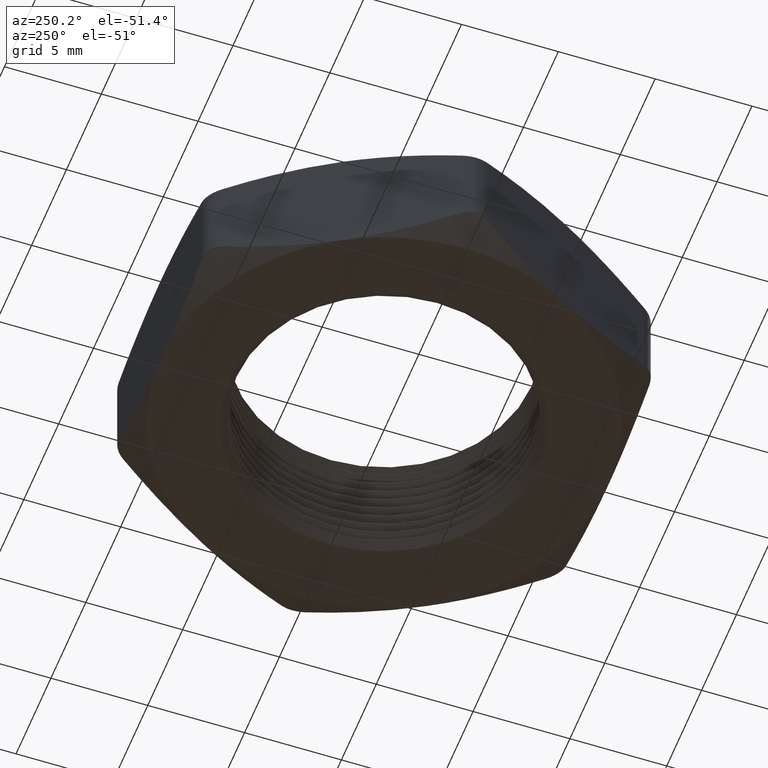
[diagram: clean part render]
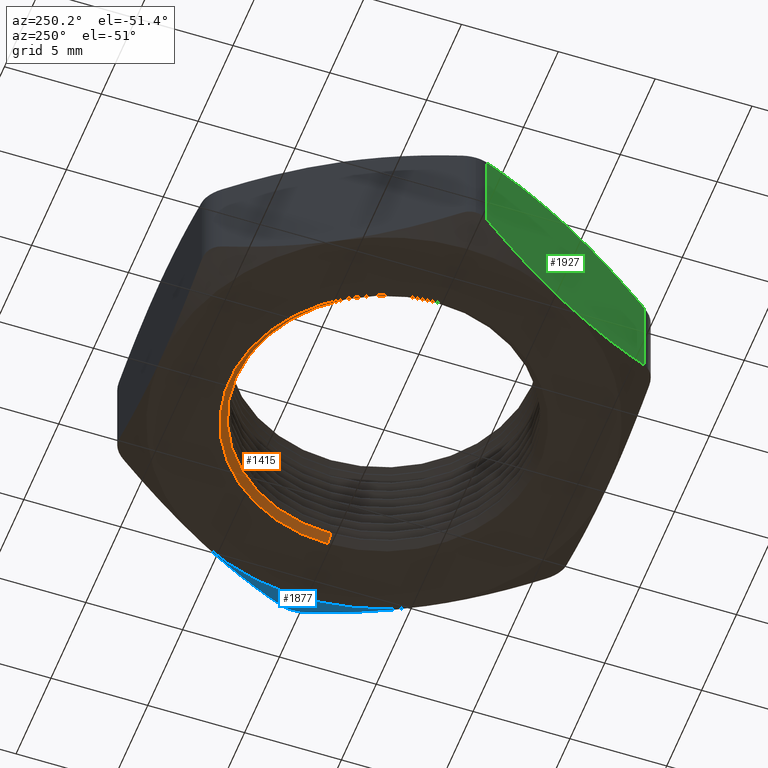
[diagram: same view with three faces highlighted in distinct colors, each labeled with its STEP entity id]
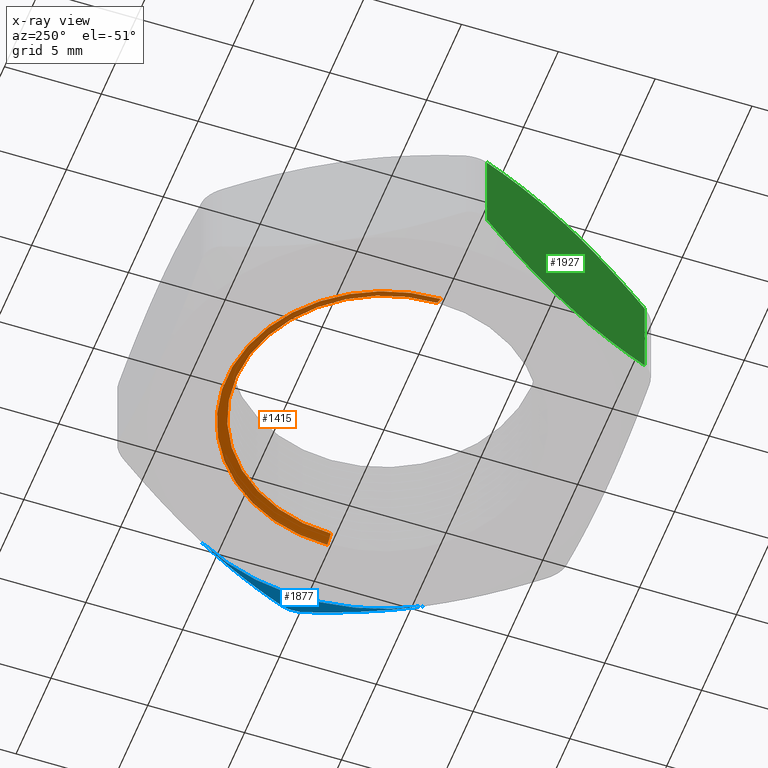
[diagram: x-ray of the same camera — body ghosted, the three highlighted faces saturated]
A machine part, auxiliary view with three faces highlighted in distinct colors.
The next image is the same camera in x-ray (body ghosted, the three faces saturated) — at least one of them is partly hidden behind the body in this view.
Their STEP definitions:

[orange] entity #1415 — the highlighted conical surface has half-angle 60 deg.
#1258 = VERTEX_POINT ( 'NONE', #2067 ) ;
#1259 = VERTEX_POINT ( 'NONE', #2066 ) ;
#1356 = EDGE_CURVE ( 'NONE', #1259, #1357, #2277, .T. ) ;
#1357 = VERTEX_POINT ( 'NONE', #2273 ) ;
#1360 = VERTEX_POINT ( 'NONE', #2361 ) ;
#1362 = EDGE_CURVE ( 'NONE', #1258, #1360, #2360, .T. ) ;
#1405 = ORIENTED_EDGE ( 'NONE', *, *, #1356, .F. ) ;
#1406 = ORIENTED_EDGE ( 'NONE', *, *, #1435, .T. ) ;
#1407 = ORIENTED_EDGE ( 'NONE', *, *, #1362, .T. ) ;
#1408 = ORIENTED_EDGE ( 'NONE', *, *, #1414, .F. ) ;
#1414 = EDGE_CURVE ( 'NONE', #1357, #1360, #2423, .T. ) ;
#1415 = ADVANCED_FACE ( 'NONE', ( #2424 ), #2416, .F. ) ;
#1416 = EDGE_LOOP ( 'NONE', ( #1405, #1406, #1407, #1408 ) ) ;
#1435 = EDGE_CURVE ( 'NONE', #1259, #1258, #2508, .T. ) ;
#2066 = CARTESIAN_POINT ( 'NONE',  ( 0.2999999999999999900, 3.673940397442058300E-017, 0.01499999999999997700 ) ) ;
#2067 = CARTESIAN_POINT ( 'NONE',  ( -0.2999999999999999900, 0.0000000000000000000, 0.01499999999999997700 ) ) ;
#2273 = CARTESIAN_POINT ( 'NONE',  ( 0.3200000000000000100, 0.0000000000000000000, 0.003452994616207730700 ) ) ;
#2274 = DIRECTION ( 'NONE',  ( 0.8660254037844440400, 1.060575238724913400E-016, -0.4999999999999907300 ) ) ;
#2275 = VECTOR ( 'NONE', #2274, 39.37007874015748100 ) ;
#2276 = CARTESIAN_POINT ( 'NONE',  ( 0.3200000000000000100, 3.918869757271530800E-017, 0.003452994616207730700 ) ) ;
#2277 = LINE ( 'NONE', #2276, #2275 ) ;
#2357 = DIRECTION ( 'NONE',  ( -0.8660254037844440400, 0.0000000000000000000, -0.4999999999999907300 ) ) ;
#2358 = VECTOR ( 'NONE', #2357, 39.37007874015748100 ) ;
#2359 = CARTESIAN_POINT ( 'NONE',  ( -0.3200000000000000100, 0.0000000000000000000, 0.003452994616207730700 ) ) ;
#2360 = LINE ( 'NONE', #2359, #2358 ) ;
#2361 = CARTESIAN_POINT ( 'NONE',  ( -0.3200000000000000100, 3.918869757271529600E-017, 0.003452994616207730700 ) ) ;
#2413 = DIRECTION ( 'NONE',  ( -1.000000000000000000, 0.0000000000000000000, 0.0000000000000000000 ) ) ;
#2414 = DIRECTION ( 'NONE',  ( 0.0000000000000000000, 0.0000000000000000000, -1.000000000000000000 ) ) ;
#2415 = AXIS2_PLACEMENT_3D ( 'NONE', #2418, #2414, #2413 ) ;
#2416 = CONICAL_SURFACE ( 'NONE', #2415, 0.3200000000000000100, 1.047197551196608500 ) ;
#2418 = CARTESIAN_POINT ( 'NONE',  ( 0.0000000000000000000, 0.0000000000000000000, 0.003452994616207730700 ) ) ;
#2419 = DIRECTION ( 'NONE',  ( 1.000000000000000000, 0.0000000000000000000, 0.0000000000000000000 ) ) ;
#2420 = DIRECTION ( 'NONE',  ( 0.0000000000000000000, 0.0000000000000000000, 1.000000000000000000 ) ) ;
#2421 = CARTESIAN_POINT ( 'NONE',  ( 0.0000000000000000000, 0.0000000000000000000, 0.003452994616207730700 ) ) ;
#2422 = AXIS2_PLACEMENT_3D ( 'NONE', #2421, #2420, #2419 ) ;
#2423 = CIRCLE ( 'NONE', #2422, 0.3200000000000000100 ) ;
#2424 = FACE_OUTER_BOUND ( 'NONE', #1416, .T. ) ;
#2494 = DIRECTION ( 'NONE',  ( 1.000000000000000000, 0.0000000000000000000, 0.0000000000000000000 ) ) ;
#2495 = DIRECTION ( 'NONE',  ( 0.0000000000000000000, 0.0000000000000000000, 1.000000000000000000 ) ) ;
#2496 = CARTESIAN_POINT ( 'NONE',  ( 0.0000000000000000000, 0.0000000000000000000, 0.01499999999999997700 ) ) ;
#2497 = AXIS2_PLACEMENT_3D ( 'NONE', #2496, #2495, #2494 ) ;
#2508 = CIRCLE ( 'NONE', #2497, 0.2999999999999999900 ) ;

[blue] entity #1877 — the highlighted conical surface has half-angle 60 deg.
#573 = CARTESIAN_POINT ( 'NONE',  ( 0.5109549882328010600, 0.02500000000003076500, 0.03265852378575818900 ) ) ;
#717 = CARTESIAN_POINT ( 'NONE',  ( 0.5148001565488535800, -0.01720949734972865300, 0.03468163387755517100 ) ) ;
#718 = CARTESIAN_POINT ( 'NONE',  ( 0.5170650165982407800, -0.008802104174805236100, 0.03586651350329239000 ) ) ;
#721 = DIRECTION ( 'NONE',  ( -1.000000000000000000, 0.0000000000000000000, 0.0000000000000000000 ) ) ;
#722 = AXIS2_PLACEMENT_3D ( 'NONE', #741, #739, #721 ) ;
#729 = CONICAL_SURFACE ( 'NONE', #722, 0.4550000000000000200, 1.047197551196600100 ) ;
#730 = FACE_OUTER_BOUND ( 'NONE', #1878, .T. ) ;
#739 = DIRECTION ( 'NONE',  ( 0.0000000000000000000, 0.0000000000000000000, 1.000000000000000000 ) ) ;
#741 = CARTESIAN_POINT ( 'NONE',  ( 0.0000000000000000000, 0.0000000000000000000, 0.0000000000000000000 ) ) ;
#804 = CARTESIAN_POINT ( 'NONE',  ( 0.3940415587219195900, -0.2275000000000000400, 0.0000000000000000000 ) ) ;
#805 = CARTESIAN_POINT ( 'NONE',  ( 0.4139180713141775700, -0.1930728703129263900, -3.185377445737431100E-016 ) ) ;
#806 = CARTESIAN_POINT ( 'NONE',  ( 0.4335757174413649200, -0.1590248284634281400, 0.003047286557915344300 ) ) ;
#807 = CARTESIAN_POINT ( 'NONE',  ( 0.4725179159795663300, -0.09157496203682961900, 0.01433645842496505800 ) ) ;
#808 = CARTESIAN_POINT ( 'NONE',  ( 0.4918044299211132800, -0.05816973998918438500, 0.02255103326592751100 ) ) ;
#809 = CARTESIAN_POINT ( 'NONE',  ( 0.5109549882328113800, -0.02500000000001276500, 0.03265852378576349800 ) ) ;
#810 = CARTESIAN_POINT ( 'NONE',  ( 0.5109549882328113800, -0.02500000000001276500, 0.03265852378576349800 ) ) ;
#811 = B_SPLINE_CURVE_WITH_KNOTS ( 'NONE', 3,
 ( #809, #808, #807, #806, #805, #804 ),
 .UNSPECIFIED., .F., .F.,
 ( 4, 2, 4 ),
 ( 0.0007548448879267501000, 0.003753248236284075000, 0.006751651584641402100 ),
 .UNSPECIFIED. ) ;
#940 = CARTESIAN_POINT ( 'NONE',  ( 0.5176575038464766900, -0.004354758607913779500, 0.03617511559322951500 ) ) ;
#941 = CARTESIAN_POINT ( 'NONE',  ( 0.5176498948249436100, 0.004441263829342938100, 0.03617114684769665000 ) ) ;
#942 = CARTESIAN_POINT ( 'NONE',  ( 0.5170596318599167700, 0.008845750843170486000, 0.03586371570928746600 ) ) ;
#943 = CARTESIAN_POINT ( 'NONE',  ( 0.5147686078461921600, 0.01730256590492920000, 0.03466510933364870500 ) ) ;
#944 = CARTESIAN_POINT ( 'NONE',  ( 0.5131063450007207200, 0.02127374077278671200, 0.03379399032299054700 ) ) ;
#945 = CARTESIAN_POINT ( 'NONE',  ( 0.5109549882328010600, 0.02500000000003076500, 0.03265852378575818900 ) ) ;
#946 = B_SPLINE_CURVE_WITH_KNOTS ( 'NONE', 3,
 ( #945, #944, #943, #942, #941, #940, #718, #717, #2535, #2536 ),
 .UNSPECIFIED., .F., .F.,
 ( 4, 2, 2, 2, 4 ),
 ( 1.450008029362912500E-016, 0.0003345748604479897900, 0.0006691497208958345200, 0.001003724581343679500, 0.001338299441791524200 ),
 .UNSPECIFIED. ) ;
#1328 = EDGE_CURVE ( 'NONE', #1440, #1767, #2266, .T. ) ;
#1440 = VERTEX_POINT ( 'NONE', #2486 ) ;
#1443 = EDGE_CURVE ( 'NONE', #1444, #1440, #2459, .T. ) ;
#1444 = VERTEX_POINT ( 'NONE', #2514 ) ;
#1767 = VERTEX_POINT ( 'NONE', #573 ) ;
#1877 = ADVANCED_FACE ( 'NONE', ( #730 ), #729, .T. ) ;
#1878 = EDGE_LOOP ( 'NONE', ( #1984, #1985, #1942, #1943 ) ) ;
#1921 = EDGE_CURVE ( 'NONE', #1922, #1444, #811, .T. ) ;
#1922 = VERTEX_POINT ( 'NONE', #810 ) ;
#1942 = ORIENTED_EDGE ( 'NONE', *, *, #1921, .T. ) ;
#1943 = ORIENTED_EDGE ( 'NONE', *, *, #1443, .T. ) ;
#1984 = ORIENTED_EDGE ( 'NONE', *, *, #1328, .T. ) ;
#1985 = ORIENTED_EDGE ( 'NONE', *, *, #1986, .T. ) ;
#1986 = EDGE_CURVE ( 'NONE', #1767, #1922, #946, .T. ) ;
#2249 = CARTESIAN_POINT ( 'NONE',  ( 0.4335849737503632000, 0.1590087960659530600, 0.003700199747440789300 ) ) ;
#2250 = CARTESIAN_POINT ( 'NONE',  ( 0.4138866949049800900, 0.1931272158478156400, 0.0007563157387480982000 ) ) ;
#2251 = CARTESIAN_POINT ( 'NONE',  ( 0.4039398436940401800, 0.2103556675204913400, -2.509084998087147800E-016 ) ) ;
#2252 = CARTESIAN_POINT ( 'NONE',  ( 0.3940415587219196500, 0.2274999999999999500, 0.0000000000000000000 ) ) ;
#2266 = B_SPLINE_CURVE_WITH_KNOTS ( 'NONE', 3,
 ( #2252, #2251, #2250, #2249, #2369, #2368, #2367, #2366 ),
 .UNSPECIFIED., .F., .F.,
 ( 4, 2, 2, 4 ),
 ( 0.006751651584641401300, 0.008244823521400665800, 0.009737995458159929400, 0.01272433933167845700 ),
 .UNSPECIFIED. ) ;
#2366 = CARTESIAN_POINT ( 'NONE',  ( 0.5109549882328010600, 0.02500000000003076500, 0.03265852378575818900 ) ) ;
#2367 = CARTESIAN_POINT ( 'NONE',  ( 0.4918480997078027400, 0.05809410169988263300, 0.02257408178220570600 ) ) ;
#2368 = CARTESIAN_POINT ( 'NONE',  ( 0.4725861320703315700, 0.09145680830173003000, 0.01436209415985254300 ) ) ;
#2369 = CARTESIAN_POINT ( 'NONE',  ( 0.4433750602790623700, 0.1420518687877505300, 0.005885157504298295200 ) ) ;
#2459 = CIRCLE ( 'NONE', #2518, 0.4549999999999999000 ) ;
#2486 = CARTESIAN_POINT ( 'NONE',  ( 0.3940415587219196500, 0.2274999999999999500, 0.0000000000000000000 ) ) ;
#2514 = CARTESIAN_POINT ( 'NONE',  ( 0.3940415587219195900, -0.2275000000000000400, 0.0000000000000000000 ) ) ;
#2515 = DIRECTION ( 'NONE',  ( 1.000000000000000000, 0.0000000000000000000, 0.0000000000000000000 ) ) ;
#2516 = DIRECTION ( 'NONE',  ( 0.0000000000000000000, 0.0000000000000000000, 1.000000000000000000 ) ) ;
#2517 = CARTESIAN_POINT ( 'NONE',  ( 0.0000000000000000000, 0.0000000000000000000, 0.0000000000000000000 ) ) ;
#2518 = AXIS2_PLACEMENT_3D ( 'NONE', #2517, #2516, #2515 ) ;
#2535 = CARTESIAN_POINT ( 'NONE',  ( 0.5131070269716965200, -0.02127255956441122900, 0.03379435026129343200 ) ) ;
#2536 = CARTESIAN_POINT ( 'NONE',  ( 0.5109549882328113800, -0.02500000000001276500, 0.03265852378576349800 ) ) ;

[green] entity #1927 — the highlighted planar face has unit normal (0.866, 0.5, 0).
#217 = CARTESIAN_POINT ( 'NONE',  ( -0.5109549882328114900, -0.02500000000001279700, 0.2073414762142364300 ) ) ;
#425 = CARTESIAN_POINT ( 'NONE',  ( -0.5109549882328189300, -0.02499999999999987300, 0.03265852378576766100 ) ) ;
#471 = DIRECTION ( 'NONE',  ( 0.0000000000000000000, 0.0000000000000000000, -1.000000000000000000 ) ) ;
#472 = VECTOR ( 'NONE', #471, 39.37007874015748100 ) ;
#473 = CARTESIAN_POINT ( 'NONE',  ( -0.5109549882328189300, -0.02499999999999995600, 0.2399999999999999900 ) ) ;
#474 = LINE ( 'NONE', #473, #472 ) ;
#661 = CARTESIAN_POINT ( 'NONE',  ( -0.5109549882328189300, -0.02499999999999987300, 0.03265852378576766100 ) ) ;
#662 = CARTESIAN_POINT ( 'NONE',  ( -0.4918480997078180100, -0.05809410169985667500, 0.02257408178221246400 ) ) ;
#663 = CARTESIAN_POINT ( 'NONE',  ( -0.4725861320703438900, -0.09145680830170908900, 0.01436209415985689900 ) ) ;
#664 = CARTESIAN_POINT ( 'NONE',  ( -0.4433750602790700900, -0.1420518687877372300, 0.005885157504300142700 ) ) ;
#665 = CARTESIAN_POINT ( 'NONE',  ( -0.4335849737503692500, -0.1590087960659423100, 0.003700199747441996300 ) ) ;
#666 = CARTESIAN_POINT ( 'NONE',  ( -0.4138866949049833700, -0.1931272158478103700, 0.0007563157387484078500 ) ) ;
#667 = CARTESIAN_POINT ( 'NONE',  ( -0.4039398436940421200, -0.2103556675204886200, -2.006200870347191200E-016 ) ) ;
#668 = CARTESIAN_POINT ( 'NONE',  ( -0.3940415587219196500, -0.2274999999999998700, 0.0000000000000000000 ) ) ;
#671 = B_SPLINE_CURVE_WITH_KNOTS ( 'NONE', 3,
 ( #668, #667, #666, #665, #664, #663, #662, #661 ),
 .UNSPECIFIED., .F., .F.,
 ( 4, 2, 2, 4 ),
 ( 0.006751651584641398700, 0.008244823521400893000, 0.009737995458160389100, 0.01272433933167938100 ),
 .UNSPECIFIED. ) ;
#743 = CARTESIAN_POINT ( 'NONE',  ( -0.3940415587219198700, -0.2275000000000000100, 0.2399999999999999900 ) ) ;
#744 = CARTESIAN_POINT ( 'NONE',  ( -0.4139180713141779000, -0.1930728703129263300, 0.2400000000000002100 ) ) ;
#745 = CARTESIAN_POINT ( 'NONE',  ( -0.4335757174413654700, -0.1590248284634280300, 0.2369527134420846000 ) ) ;
#746 = CARTESIAN_POINT ( 'NONE',  ( -0.4725179159795663300, -0.09157496203682959100, 0.2256635415750348800 ) ) ;
#747 = CARTESIAN_POINT ( 'NONE',  ( -0.4918044299211136200, -0.05816973998918444100, 0.2174489667340724100 ) ) ;
#748 = CARTESIAN_POINT ( 'NONE',  ( -0.5109549882328114900, -0.02500000000001279700, 0.2073414762142364300 ) ) ;
#749 = B_SPLINE_CURVE_WITH_KNOTS ( 'NONE', 3,
 ( #748, #747, #746, #745, #744, #743 ),
 .UNSPECIFIED., .F., .F.,
 ( 4, 2, 4 ),
 ( 0.0007548448879267511800, 0.003753248236284075500, 0.006751651584641398700 ),
 .UNSPECIFIED. ) ;
#797 = PLANE ( 'NONE',  #849 ) ;
#798 = FACE_OUTER_BOUND ( 'NONE', #1961, .T. ) ;
#841 = DIRECTION ( 'NONE',  ( -0.4999999999999997200, 0.8660254037844388200, 0.0000000000000000000 ) ) ;
#842 = DIRECTION ( 'NONE',  ( 0.8660254037844388200, 0.4999999999999997200, 0.0000000000000000000 ) ) ;
#843 = CARTESIAN_POINT ( 'NONE',  ( -0.5253887449625596100, 7.036056802819231600E-017, 0.2399999999999999900 ) ) ;
#849 = AXIS2_PLACEMENT_3D ( 'NONE', #843, #842, #841 ) ;
#850 = CARTESIAN_POINT ( 'NONE',  ( -0.2962786875227262900, -0.3968302600108153400, 0.02255103326592758400 ) ) ;
#851 = CARTESIAN_POINT ( 'NONE',  ( -0.2771281292110280800, -0.4299999999999870600, 0.03265852378576356000 ) ) ;
#852 = CARTESIAN_POINT ( 'NONE',  ( -0.2771281292110280800, -0.4299999999999870600, 0.03265852378576356000 ) ) ;
#853 = B_SPLINE_CURVE_WITH_KNOTS ( 'NONE', 3,
 ( #851, #850, #909, #908, #907, #906 ),
 .UNSPECIFIED., .F., .F.,
 ( 4, 2, 4 ),
 ( 0.0007548448879267518300, 0.003753248236284073700, 0.006751651584641398700 ),
 .UNSPECIFIED. ) ;
#890 = CARTESIAN_POINT ( 'NONE',  ( -0.2771281292110206500, -0.4299999999999999400, 0.2073414762142324100 ) ) ;
#891 = CARTESIAN_POINT ( 'NONE',  ( -0.2962350177360218400, -0.3969058983001431100, 0.2174259182177875600 ) ) ;
#892 = CARTESIAN_POINT ( 'NONE',  ( -0.3154969853734959100, -0.3635431916982906900, 0.2256379058401431500 ) ) ;
#893 = CARTESIAN_POINT ( 'NONE',  ( -0.3447080571647696500, -0.3129481312122625000, 0.2341148424956999200 ) ) ;
#894 = CARTESIAN_POINT ( 'NONE',  ( -0.3544981436934701600, -0.2959912039340574200, 0.2362998002525579800 ) ) ;
#895 = CARTESIAN_POINT ( 'NONE',  ( -0.3741964225388564300, -0.2618727841521895600, 0.2392436842612516200 ) ) ;
#896 = CARTESIAN_POINT ( 'NONE',  ( -0.3841432737497974500, -0.2446443324795112300, 0.2400000000000001000 ) ) ;
#897 = CARTESIAN_POINT ( 'NONE',  ( -0.3940415587219198700, -0.2275000000000000100, 0.2399999999999999900 ) ) ;
#899 = CARTESIAN_POINT ( 'NONE',  ( -0.3940415587219198700, -0.2275000000000000100, 0.2399999999999999900 ) ) ;
#900 = B_SPLINE_CURVE_WITH_KNOTS ( 'NONE', 3,
 ( #897, #896, #895, #894, #893, #892, #891, #890 ),
 .UNSPECIFIED., .F., .F.,
 ( 4, 2, 2, 4 ),
 ( 0.006751651584641398700, 0.008244823521400893000, 0.009737995458160387400, 0.01272433933167937600 ),
 .UNSPECIFIED. ) ;
#901 = CARTESIAN_POINT ( 'NONE',  ( -0.2771281292110206500, -0.4299999999999999400, 0.2073414762142324100 ) ) ;
#902 = DIRECTION ( 'NONE',  ( 0.0000000000000000000, 0.0000000000000000000, 1.000000000000000000 ) ) ;
#903 = VECTOR ( 'NONE', #902, 39.37007874015748100 ) ;
#904 = CARTESIAN_POINT ( 'NONE',  ( -0.2771281292110207000, -0.4299999999999999400, 0.2399999999999999900 ) ) ;
#905 = LINE ( 'NONE', #904, #903 ) ;
#906 = CARTESIAN_POINT ( 'NONE',  ( -0.3940415587219196500, -0.2274999999999998700, 0.0000000000000000000 ) ) ;
#907 = CARTESIAN_POINT ( 'NONE',  ( -0.3741650461296617300, -0.2619271296870736600, -1.996863499275098800E-016 ) ) ;
#908 = CARTESIAN_POINT ( 'NONE',  ( -0.3545074000024741000, -0.2959751715365717100, 0.003047286557915398100 ) ) ;
#909 = CARTESIAN_POINT ( 'NONE',  ( -0.3155652014642733600, -0.3634250379631702200, 0.01433645842496508000 ) ) ;
#1464 = VERTEX_POINT ( 'NONE', #2407 ) ;
#1581 = VERTEX_POINT ( 'NONE', #217 ) ;
#1701 = VERTEX_POINT ( 'NONE', #425 ) ;
#1703 = EDGE_CURVE ( 'NONE', #1581, #1701, #474, .T. ) ;
#1806 = EDGE_CURVE ( 'NONE', #1464, #1701, #671, .T. ) ;
#1901 = ORIENTED_EDGE ( 'NONE', *, *, #1902, .F. ) ;
#1902 = EDGE_CURVE ( 'NONE', #1581, #1955, #749, .T. ) ;
#1903 = ORIENTED_EDGE ( 'NONE', *, *, #1703, .T. ) ;
#1904 = ORIENTED_EDGE ( 'NONE', *, *, #1806, .F. ) ;
#1927 = ADVANCED_FACE ( 'NONE', ( #798 ), #797, .F. ) ;
#1947 = ORIENTED_EDGE ( 'NONE', *, *, #1948, .F. ) ;
#1948 = EDGE_CURVE ( 'NONE', #1949, #1464, #853, .T. ) ;
#1949 = VERTEX_POINT ( 'NONE', #852 ) ;
#1950 = ORIENTED_EDGE ( 'NONE', *, *, #1951, .T. ) ;
#1951 = EDGE_CURVE ( 'NONE', #1949, #1952, #905, .T. ) ;
#1952 = VERTEX_POINT ( 'NONE', #901 ) ;
#1953 = ORIENTED_EDGE ( 'NONE', *, *, #1954, .F. ) ;
#1954 = EDGE_CURVE ( 'NONE', #1955, #1952, #900, .T. ) ;
#1955 = VERTEX_POINT ( 'NONE', #899 ) ;
#1961 = EDGE_LOOP ( 'NONE', ( #1947, #1950, #1953, #1901, #1903, #1904 ) ) ;
#2407 = CARTESIAN_POINT ( 'NONE',  ( -0.3940415587219196500, -0.2274999999999998700, 0.0000000000000000000 ) ) ;